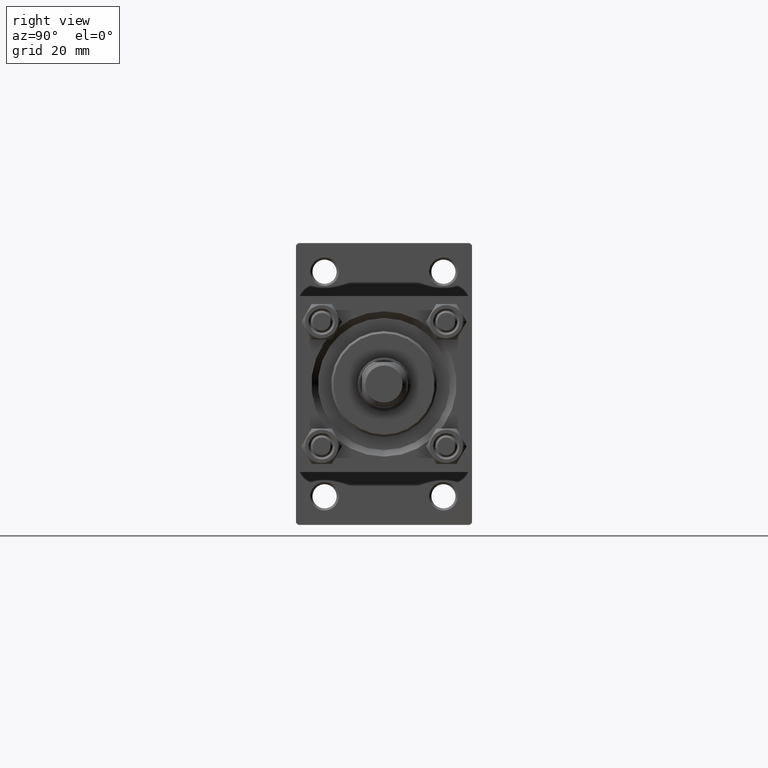
[diagram: clean part render]
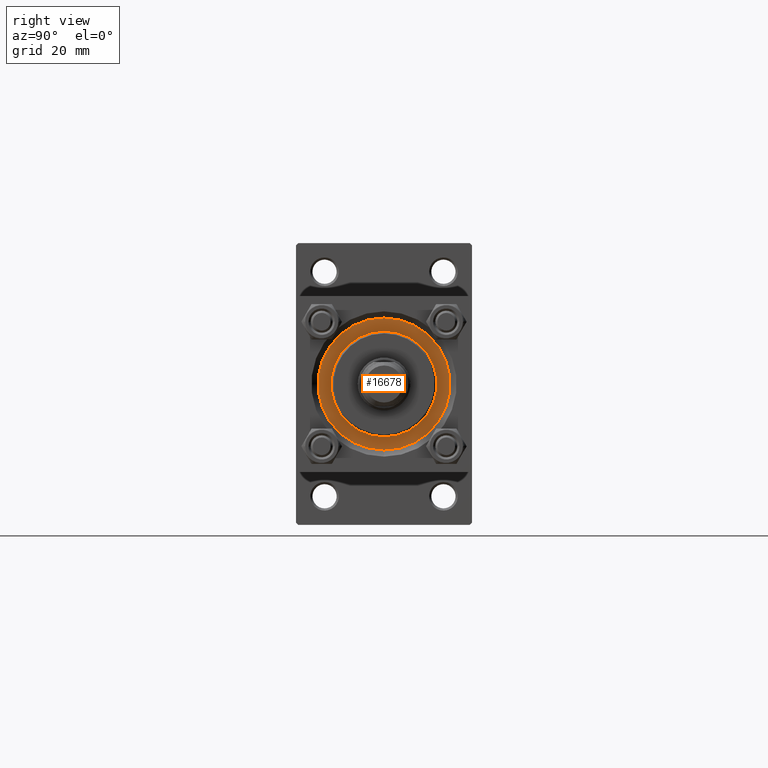
[diagram: same view with one face highlighted and labeled with its STEP entity id]
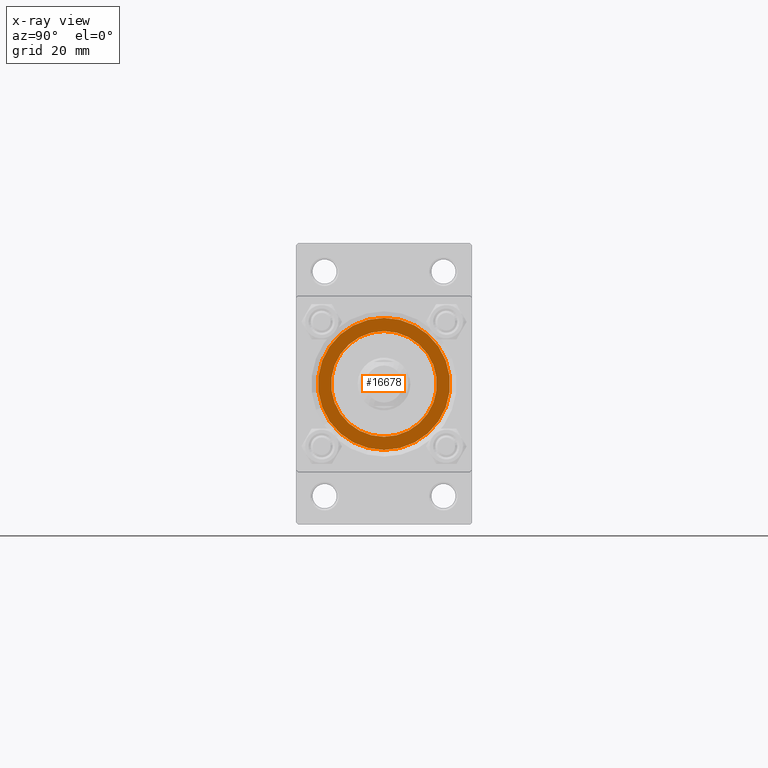
[diagram: x-ray of the same camera — body ghosted, the highlighted face saturated]
A machine part, right view. The second image highlights one B-rep face of the part: STEP entity #16678.
The next image is the same camera in x-ray: the body ghosted, the highlighted face saturated — about 0% of this face is hidden behind the body in this view.
In plain terms, the highlighted planar face has unit normal (1, 0, 0).
Its self-contained STEP definition (entity closure, byte-faithful):
#576 = ORIENTED_EDGE ( 'NONE', *, *, #40642, .T. ) ;
#1432 = CARTESIAN_POINT ( 'NONE',  ( 0.000000000000000000, 0.000000000000000000, 28.69999999999999929 ) ) ;
#2236 = EDGE_CURVE ( 'NONE', #38006, #32641, #22857, .T. ) ;
#2499 = CIRCLE ( 'NONE', #4068, 15.00000000000000000 ) ;
#3479 = VERTEX_POINT ( 'NONE', #26453 ) ;
#3585 = EDGE_CURVE ( 'NONE', #38697, #3479, #2499, .T. ) ;
#3719 = CARTESIAN_POINT ( 'NONE',  ( -15.00000000000000000, 0.000000000000000000, 28.69999999999999929 ) ) ;
#4068 = AXIS2_PLACEMENT_3D ( 'NONE', #1432, #43479, #4754 ) ;
#4496 = AXIS2_PLACEMENT_3D ( 'NONE', #33970, #49501, #26315 ) ;
#4754 = DIRECTION ( 'NONE',  ( 1.000000000000000000, 0.000000000000000000, 0.000000000000000000 ) ) ;
#10491 = ORIENTED_EDGE ( 'NONE', *, *, #43002, .F. ) ;
#13421 = DIRECTION ( 'NONE',  ( 0.000000000000000000, 0.000000000000000000, 1.000000000000000000 ) ) ;
#14749 = CIRCLE ( 'NONE', #45661, 12.00000000000000178 ) ;
#16678 = ADVANCED_FACE ( 'NONE', ( #45680, #36329 ), #40644, .T. ) ;
#20830 = CARTESIAN_POINT ( 'NONE',  ( 0.000000000000000000, 0.000000000000000000, 28.69999999999999929 ) ) ;
#22228 = CARTESIAN_POINT ( 'NONE',  ( 0.000000000000000000, 0.000000000000000000, 28.69999999999999929 ) ) ;
#22857 = CIRCLE ( 'NONE', #42340, 12.00000000000000178 ) ;
#25738 = DIRECTION ( 'NONE',  ( 1.000000000000000000, 0.000000000000000000, 0.000000000000000000 ) ) ;
#25893 = EDGE_LOOP ( 'NONE', ( #33361, #576 ) ) ;
#26315 = DIRECTION ( 'NONE',  ( 1.000000000000000000, 0.000000000000000000, -0.000000000000000000 ) ) ;
#26453 = CARTESIAN_POINT ( 'NONE',  ( 15.00000000000000000, 1.836970198721029589E-15, 28.69999999999999929 ) ) ;
#27089 = EDGE_LOOP ( 'NONE', ( #45767, #10491 ) ) ;
#27614 = CIRCLE ( 'NONE', #42278, 15.00000000000000000 ) ;
#28966 = DIRECTION ( 'NONE',  ( 1.000000000000000000, 0.000000000000000000, 0.000000000000000000 ) ) ;
#29071 = CARTESIAN_POINT ( 'NONE',  ( 12.00000000000000178, 1.469576158976824144E-15, 28.69999999999999929 ) ) ;
#30364 = DIRECTION ( 'NONE',  ( 0.000000000000000000, 0.000000000000000000, 1.000000000000000000 ) ) ;
#32641 = VERTEX_POINT ( 'NONE', #29071 ) ;
#33361 = ORIENTED_EDGE ( 'NONE', *, *, #3585, .T. ) ;
#33647 = DIRECTION ( 'NONE',  ( 0.000000000000000000, 0.000000000000000000, 1.000000000000000000 ) ) ;
#33970 = CARTESIAN_POINT ( 'NONE',  ( 0.000000000000000000, 0.000000000000000000, 28.69999999999999929 ) ) ;
#36329 = FACE_OUTER_BOUND ( 'NONE', #25893, .T. ) ;
#38006 = VERTEX_POINT ( 'NONE', #40607 ) ;
#38697 = VERTEX_POINT ( 'NONE', #3719 ) ;
#40607 = CARTESIAN_POINT ( 'NONE',  ( -12.00000000000000178, 0.000000000000000000, 28.69999999999999929 ) ) ;
#40642 = EDGE_CURVE ( 'NONE', #3479, #38697, #27614, .T. ) ;
#40644 = PLANE ( 'NONE',  #4496 ) ;
#40778 = CARTESIAN_POINT ( 'NONE',  ( 0.000000000000000000, 0.000000000000000000, 28.69999999999999929 ) ) ;
#42278 = AXIS2_PLACEMENT_3D ( 'NONE', #20830, #13421, #28966 ) ;
#42340 = AXIS2_PLACEMENT_3D ( 'NONE', #40778, #33647, #25738 ) ;
#43002 = EDGE_CURVE ( 'NONE', #32641, #38006, #14749, .T. ) ;
#43479 = DIRECTION ( 'NONE',  ( 0.000000000000000000, 0.000000000000000000, 1.000000000000000000 ) ) ;
#45661 = AXIS2_PLACEMENT_3D ( 'NONE', #22228, #30364, #49729 ) ;
#45680 = FACE_BOUND ( 'NONE', #27089, .T. ) ;
#45767 = ORIENTED_EDGE ( 'NONE', *, *, #2236, .F. ) ;
#49501 = DIRECTION ( 'NONE',  ( 0.000000000000000000, 0.000000000000000000, 1.000000000000000000 ) ) ;
#49729 = DIRECTION ( 'NONE',  ( 1.000000000000000000, 0.000000000000000000, 0.000000000000000000 ) ) ;